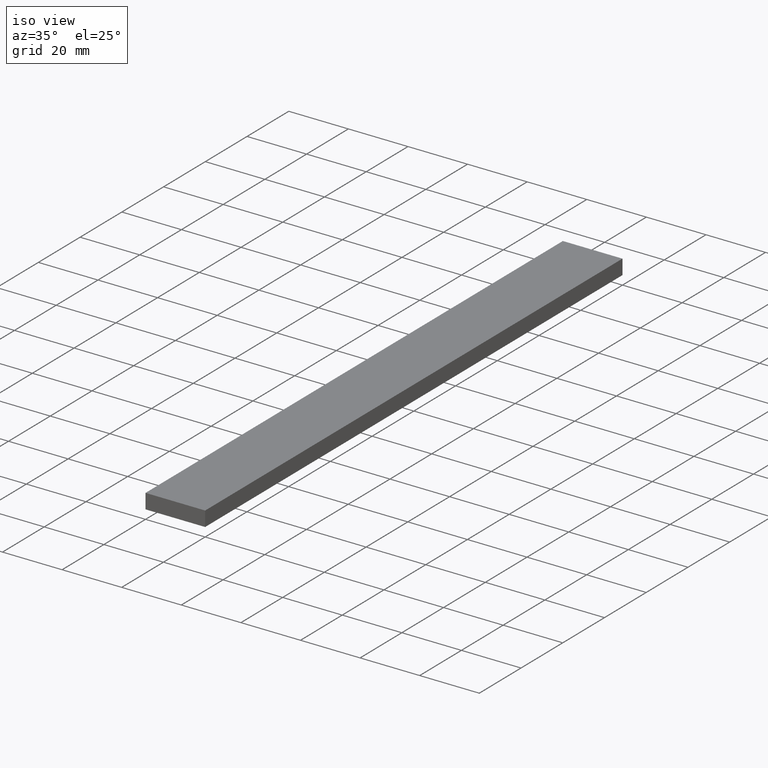
[diagram: clean part render]
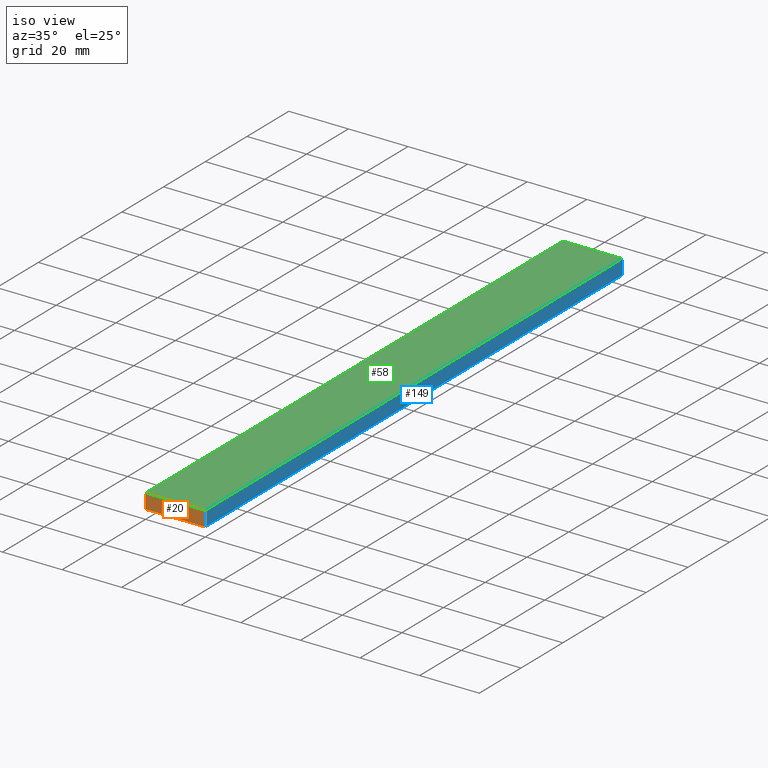
[diagram: same view with three faces highlighted in distinct colors, each labeled with its STEP entity id]
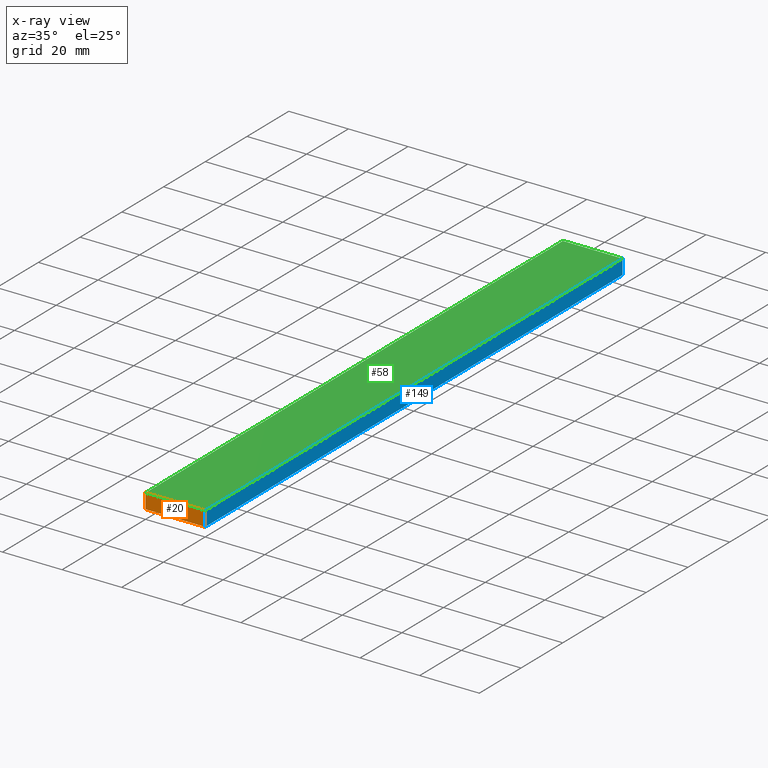
[diagram: x-ray of the same camera — body ghosted, the three highlighted faces saturated]
A machine part, iso view with three faces highlighted in distinct colors.
The next image is the same camera in x-ray (body ghosted, the three faces saturated) — at least one of them is partly hidden behind the body in this view.
Their STEP definitions:

[orange] entity #20 — the highlighted planar face has unit normal (0, 1, 0).
#4 = VECTOR ( 'NONE', #171, 1000.000000000000000 ) ;
#20 = ADVANCED_FACE ( 'NONE', ( #205 ), #95, .F. ) ;
#30 = VERTEX_POINT ( 'NONE', #34 ) ;
#34 = CARTESIAN_POINT ( 'NONE',  ( 0.0000000000000000000, 0.0000000000000000000, 0.0000000000000000000 ) ) ;
#37 = LINE ( 'NONE', #234, #137 ) ;
#50 = ORIENTED_EDGE ( 'NONE', *, *, #226, .F. ) ;
#51 = LINE ( 'NONE', #69, #173 ) ;
#61 = DIRECTION ( 'NONE',  ( 1.000000000000000000, 0.0000000000000000000, 0.0000000000000000000 ) ) ;
#68 = DIRECTION ( 'NONE',  ( 1.000000000000000000, 0.0000000000000000000, 0.0000000000000000000 ) ) ;
#69 = CARTESIAN_POINT ( 'NONE',  ( 0.0000000000000000000, 0.0000000000000000000, 0.0000000000000000000 ) ) ;
#78 = EDGE_CURVE ( 'NONE', #124, #145, #162, .T. ) ;
#90 = LINE ( 'NONE', #215, #4 ) ;
#95 = PLANE ( 'NONE',  #189 ) ;
#103 = DIRECTION ( 'NONE',  ( 0.0000000000000000000, 0.0000000000000000000, -1.000000000000000000 ) ) ;
#106 = DIRECTION ( 'NONE',  ( 0.0000000000000000000, 0.0000000000000000000, 1.000000000000000000 ) ) ;
#115 = ORIENTED_EDGE ( 'NONE', *, *, #169, .F. ) ;
#124 = VERTEX_POINT ( 'NONE', #142 ) ;
#137 = VECTOR ( 'NONE', #68, 1000.000000000000000 ) ;
#142 = CARTESIAN_POINT ( 'NONE',  ( 20.00000000000000000, 0.0000000000000000000, 5.000000000000000000 ) ) ;
#145 = VERTEX_POINT ( 'NONE', #202 ) ;
#146 = ORIENTED_EDGE ( 'NONE', *, *, #78, .F. ) ;
#155 = ORIENTED_EDGE ( 'NONE', *, *, #212, .F. ) ;
#162 = LINE ( 'NONE', #168, #178 ) ;
#165 = VERTEX_POINT ( 'NONE', #181 ) ;
#168 = CARTESIAN_POINT ( 'NONE',  ( 20.00000000000000000, 0.0000000000000000000, 5.000000000000000000 ) ) ;
#169 = EDGE_CURVE ( 'NONE', #165, #124, #37, .T. ) ;
#171 = DIRECTION ( 'NONE',  ( -1.000000000000000000, 0.0000000000000000000, 0.0000000000000000000 ) ) ;
#173 = VECTOR ( 'NONE', #106, 1000.000000000000000 ) ;
#178 = VECTOR ( 'NONE', #103, 1000.000000000000000 ) ;
#181 = CARTESIAN_POINT ( 'NONE',  ( 0.0000000000000000000, 0.0000000000000000000, 5.000000000000000000 ) ) ;
#189 = AXIS2_PLACEMENT_3D ( 'NONE', #198, #204, #61 ) ;
#198 = CARTESIAN_POINT ( 'NONE',  ( 0.0000000000000000000, 0.0000000000000000000, 0.0000000000000000000 ) ) ;
#202 = CARTESIAN_POINT ( 'NONE',  ( 20.00000000000000000, 0.0000000000000000000, 0.0000000000000000000 ) ) ;
#204 = DIRECTION ( 'NONE',  ( -0.0000000000000000000, 1.000000000000000000, 0.0000000000000000000 ) ) ;
#205 = FACE_OUTER_BOUND ( 'NONE', #231, .T. ) ;
#212 = EDGE_CURVE ( 'NONE', #145, #30, #90, .T. ) ;
#215 = CARTESIAN_POINT ( 'NONE',  ( 20.00000000000000000, 0.0000000000000000000, 0.0000000000000000000 ) ) ;
#226 = EDGE_CURVE ( 'NONE', #30, #165, #51, .T. ) ;
#231 = EDGE_LOOP ( 'NONE', ( #115, #50, #155, #146 ) ) ;
#234 = CARTESIAN_POINT ( 'NONE',  ( 0.0000000000000000000, 0.0000000000000000000, 5.000000000000000000 ) ) ;

[blue] entity #149 — the highlighted planar face has unit normal (-1, 0, 0).
#7 = ORIENTED_EDGE ( 'NONE', *, *, #184, .F. ) ;
#23 = VERTEX_POINT ( 'NONE', #232 ) ;
#35 = ORIENTED_EDGE ( 'NONE', *, *, #78, .T. ) ;
#41 = LINE ( 'NONE', #164, #127 ) ;
#49 = AXIS2_PLACEMENT_3D ( 'NONE', #179, #67, #199 ) ;
#67 = DIRECTION ( 'NONE',  ( -1.000000000000000000, 0.0000000000000000000, 0.0000000000000000000 ) ) ;
#78 = EDGE_CURVE ( 'NONE', #124, #145, #162, .T. ) ;
#80 = VECTOR ( 'NONE', #125, 1000.000000000000000 ) ;
#87 = LINE ( 'NONE', #201, #227 ) ;
#98 = VERTEX_POINT ( 'NONE', #104 ) ;
#103 = DIRECTION ( 'NONE',  ( 0.0000000000000000000, 0.0000000000000000000, -1.000000000000000000 ) ) ;
#104 = CARTESIAN_POINT ( 'NONE',  ( 20.00000000000000000, 200.0000000000000000, 5.000000000000000000 ) ) ;
#105 = PLANE ( 'NONE',  #49 ) ;
#117 = LINE ( 'NONE', #197, #80 ) ;
#121 = ORIENTED_EDGE ( 'NONE', *, *, #188, .F. ) ;
#124 = VERTEX_POINT ( 'NONE', #142 ) ;
#125 = DIRECTION ( 'NONE',  ( 0.0000000000000000000, 0.0000000000000000000, -1.000000000000000000 ) ) ;
#127 = VECTOR ( 'NONE', #235, 1000.000000000000000 ) ;
#134 = EDGE_LOOP ( 'NONE', ( #35, #7, #121, #159 ) ) ;
#142 = CARTESIAN_POINT ( 'NONE',  ( 20.00000000000000000, 0.0000000000000000000, 5.000000000000000000 ) ) ;
#144 = DIRECTION ( 'NONE',  ( 0.0000000000000000000, -1.000000000000000000, 0.0000000000000000000 ) ) ;
#145 = VERTEX_POINT ( 'NONE', #202 ) ;
#149 = ADVANCED_FACE ( 'NONE', ( #224 ), #105, .F. ) ;
#159 = ORIENTED_EDGE ( 'NONE', *, *, #214, .T. ) ;
#162 = LINE ( 'NONE', #168, #178 ) ;
#164 = CARTESIAN_POINT ( 'NONE',  ( 20.00000000000000000, 1000.000000000000000, 5.000000000000000000 ) ) ;
#168 = CARTESIAN_POINT ( 'NONE',  ( 20.00000000000000000, 0.0000000000000000000, 5.000000000000000000 ) ) ;
#178 = VECTOR ( 'NONE', #103, 1000.000000000000000 ) ;
#179 = CARTESIAN_POINT ( 'NONE',  ( 20.00000000000000000, 1000.000000000000000, 5.000000000000000000 ) ) ;
#184 = EDGE_CURVE ( 'NONE', #23, #145, #87, .T. ) ;
#188 = EDGE_CURVE ( 'NONE', #98, #23, #117, .T. ) ;
#197 = CARTESIAN_POINT ( 'NONE',  ( 20.00000000000000000, 200.0000000000000000, 5.000000000000000000 ) ) ;
#199 = DIRECTION ( 'NONE',  ( 0.0000000000000000000, 0.0000000000000000000, 1.000000000000000000 ) ) ;
#201 = CARTESIAN_POINT ( 'NONE',  ( 20.00000000000000000, 1000.000000000000000, 0.0000000000000000000 ) ) ;
#202 = CARTESIAN_POINT ( 'NONE',  ( 20.00000000000000000, 0.0000000000000000000, 0.0000000000000000000 ) ) ;
#214 = EDGE_CURVE ( 'NONE', #98, #124, #41, .T. ) ;
#224 = FACE_OUTER_BOUND ( 'NONE', #134, .T. ) ;
#227 = VECTOR ( 'NONE', #144, 1000.000000000000000 ) ;
#232 = CARTESIAN_POINT ( 'NONE',  ( 20.00000000000000000, 200.0000000000000000, 0.0000000000000000000 ) ) ;
#235 = DIRECTION ( 'NONE',  ( 0.0000000000000000000, -1.000000000000000000, 0.0000000000000000000 ) ) ;

[green] entity #58 — the highlighted planar face has unit normal (0, 0, -1).
#10 = CARTESIAN_POINT ( 'NONE',  ( 0.0000000000000000000, 1000.000000000000000, 5.000000000000000000 ) ) ;
#22 = ORIENTED_EDGE ( 'NONE', *, *, #83, .F. ) ;
#27 = ORIENTED_EDGE ( 'NONE', *, *, #169, .T. ) ;
#33 = CARTESIAN_POINT ( 'NONE',  ( 0.0000000000000000000, 200.0000000000000000, 5.000000000000000000 ) ) ;
#37 = LINE ( 'NONE', #234, #137 ) ;
#41 = LINE ( 'NONE', #164, #127 ) ;
#44 = FACE_OUTER_BOUND ( 'NONE', #130, .T. ) ;
#48 = LINE ( 'NONE', #10, #147 ) ;
#54 = DIRECTION ( 'NONE',  ( -1.000000000000000000, 0.0000000000000000000, 0.0000000000000000000 ) ) ;
#58 = ADVANCED_FACE ( 'NONE', ( #44 ), #126, .F. ) ;
#60 = LINE ( 'NONE', #33, #229 ) ;
#65 = CARTESIAN_POINT ( 'NONE',  ( 0.0000000000000000000, 1000.000000000000000, 5.000000000000000000 ) ) ;
#68 = DIRECTION ( 'NONE',  ( 1.000000000000000000, 0.0000000000000000000, 0.0000000000000000000 ) ) ;
#76 = ORIENTED_EDGE ( 'NONE', *, *, #150, .T. ) ;
#83 = EDGE_CURVE ( 'NONE', #116, #98, #60, .T. ) ;
#98 = VERTEX_POINT ( 'NONE', #104 ) ;
#104 = CARTESIAN_POINT ( 'NONE',  ( 20.00000000000000000, 200.0000000000000000, 5.000000000000000000 ) ) ;
#116 = VERTEX_POINT ( 'NONE', #219 ) ;
#124 = VERTEX_POINT ( 'NONE', #142 ) ;
#126 = PLANE ( 'NONE',  #133 ) ;
#127 = VECTOR ( 'NONE', #235, 1000.000000000000000 ) ;
#130 = EDGE_LOOP ( 'NONE', ( #27, #211, #22, #76 ) ) ;
#133 = AXIS2_PLACEMENT_3D ( 'NONE', #65, #158, #54 ) ;
#137 = VECTOR ( 'NONE', #68, 1000.000000000000000 ) ;
#142 = CARTESIAN_POINT ( 'NONE',  ( 20.00000000000000000, 0.0000000000000000000, 5.000000000000000000 ) ) ;
#147 = VECTOR ( 'NONE', #167, 1000.000000000000000 ) ;
#150 = EDGE_CURVE ( 'NONE', #116, #165, #48, .T. ) ;
#158 = DIRECTION ( 'NONE',  ( 0.0000000000000000000, 0.0000000000000000000, -1.000000000000000000 ) ) ;
#164 = CARTESIAN_POINT ( 'NONE',  ( 20.00000000000000000, 1000.000000000000000, 5.000000000000000000 ) ) ;
#165 = VERTEX_POINT ( 'NONE', #181 ) ;
#167 = DIRECTION ( 'NONE',  ( 0.0000000000000000000, -1.000000000000000000, 0.0000000000000000000 ) ) ;
#169 = EDGE_CURVE ( 'NONE', #165, #124, #37, .T. ) ;
#181 = CARTESIAN_POINT ( 'NONE',  ( 0.0000000000000000000, 0.0000000000000000000, 5.000000000000000000 ) ) ;
#211 = ORIENTED_EDGE ( 'NONE', *, *, #214, .F. ) ;
#214 = EDGE_CURVE ( 'NONE', #98, #124, #41, .T. ) ;
#217 = DIRECTION ( 'NONE',  ( 1.000000000000000000, 0.0000000000000000000, 0.0000000000000000000 ) ) ;
#219 = CARTESIAN_POINT ( 'NONE',  ( 0.0000000000000000000, 200.0000000000000000, 5.000000000000000000 ) ) ;
#229 = VECTOR ( 'NONE', #217, 1000.000000000000000 ) ;
#234 = CARTESIAN_POINT ( 'NONE',  ( 0.0000000000000000000, 0.0000000000000000000, 5.000000000000000000 ) ) ;
#235 = DIRECTION ( 'NONE',  ( 0.0000000000000000000, -1.000000000000000000, 0.0000000000000000000 ) ) ;